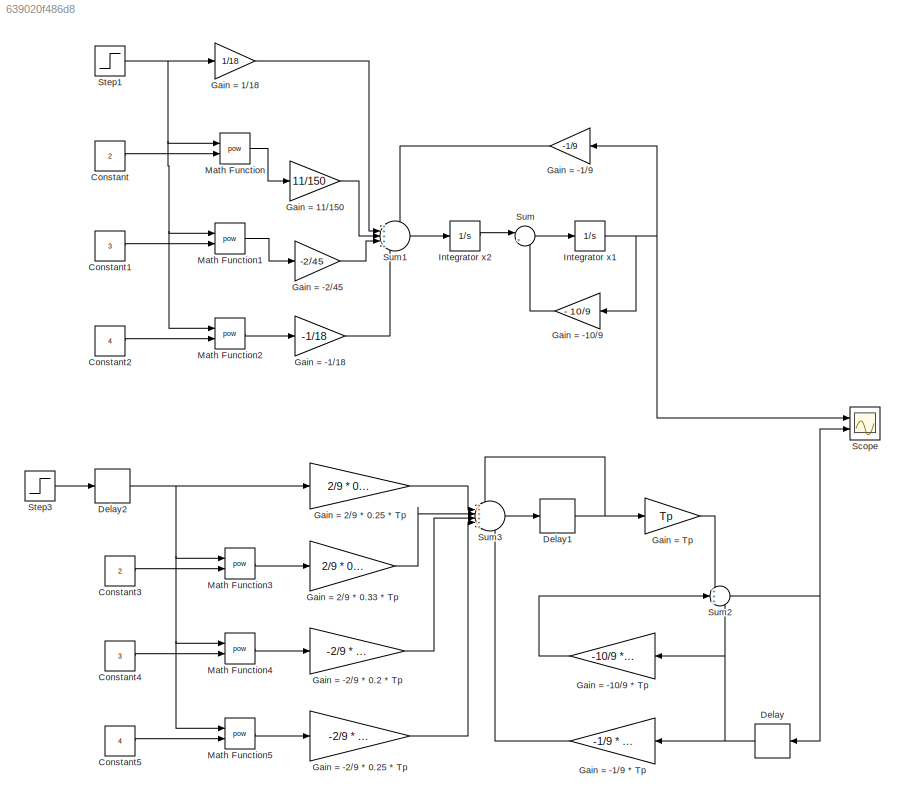
MODEL slx_639020f486d8
KIND model
CONFIG AbsTol = auto
CONFIG EnableMultiTasking = off
CONFIG FixedStep = auto
CONFIG MaxStep = auto
CONFIG MinStep = auto
CONFIG RelTol = 1e-3
CONFIG SampleTimeConstraint = Unconstrained
CONFIG Solver = VariableStepAuto
CONFIG SolverName = VariableStepAuto
CONFIG StartTime = 0.0
CONFIG StopTime = 100
BLOCK [Constant] Constant
  Value = 2
BLOCK [Constant] Constant1
  Value = 3
BLOCK [Constant] Constant2
  Value = 4
BLOCK [Constant] Constant3
  Value = 2
BLOCK [Constant] Constant4
  Value = 3
BLOCK [Constant] Constant5
  Value = 4
BLOCK [Delay] Delay
  DelayLength = 1
  InitialCondition = 0
  InputPortMap = u0
  Ports = [1, 1]
  SampleTime = Tp
BLOCK [Delay] Delay1
  DelayLength = 1
  InitialCondition = 0
  InputPortMap = u0
  Ports = [1, 1]
  SampleTime = Tp
BLOCK [Delay] Delay2
  DelayLength = 1
  InitialCondition = 0
  InputPortMap = u0
  Ports = [1, 1]
  SampleTime = Tp
BLOCK [Gain] Gain = -1//18
  Gain = -1/18
  OutDataTypeStr = Inherit: Inherit via internal rule
  ParamDataTypeStr = Inherit: Inherit via internal rule
  SaturateOnIntegerOverflow = off
BLOCK [Gain] Gain = -1//9
  Gain = -1/9
  OutDataTypeStr = Inherit: Inherit via internal rule
  ParamDataTypeStr = Inherit: Inherit via internal rule
  SaturateOnIntegerOverflow = off
BLOCK [Gain] Gain = -1//9 * Tp
  Gain = -1/9 * Tp
  OutDataTypeStr = Inherit: Inherit via internal rule
  ParamDataTypeStr = Inherit: Inherit via internal rule
  SaturateOnIntegerOverflow = off
BLOCK [Gain] Gain = -10//9
  Gain = - 10/9
  OutDataTypeStr = Inherit: Inherit via internal rule
  ParamDataTypeStr = Inherit: Inherit via internal rule
  SaturateOnIntegerOverflow = off
BLOCK [Gain] Gain = -10//9 * Tp
  Gain = -10/9 * Tp
  OutDataTypeStr = Inherit: Inherit via internal rule
  ParamDataTypeStr = Inherit: Inherit via internal rule
  SaturateOnIntegerOverflow = off
BLOCK [Gain] Gain = -2//45
  Gain = -2/45
  OutDataTypeStr = Inherit: Inherit via internal rule
  ParamDataTypeStr = Inherit: Inherit via internal rule
  SaturateOnIntegerOverflow = off
BLOCK [Gain] Gain = -2//9 * 0.2 * Tp
  Gain = -2/9 * 0.2 * Tp
  OutDataTypeStr = Inherit: Inherit via internal rule
  ParamDataTypeStr = Inherit: Inherit via internal rule
  SaturateOnIntegerOverflow = off
BLOCK [Gain] Gain = -2//9 * 0.25 * Tp
  Gain = -2/9 * 0.25 * Tp
  OutDataTypeStr = Inherit: Inherit via internal rule
  ParamDataTypeStr = Inherit: Inherit via internal rule
  SaturateOnIntegerOverflow = off
BLOCK [Gain] Gain = 1//18
  Gain = 1/18
  OutDataTypeStr = Inherit: Inherit via internal rule
  ParamDataTypeStr = Inherit: Inherit via internal rule
  SaturateOnIntegerOverflow = off
BLOCK [Gain] Gain = 11//150
  Gain = 11/150
  OutDataTypeStr = Inherit: Inherit via internal rule
  ParamDataTypeStr = Inherit: Inherit via internal rule
  SaturateOnIntegerOverflow = off
BLOCK [Gain] Gain = 2//9 * 0.25 * Tp
  Gain = 2/9 * 0.25 * Tp
  OutDataTypeStr = Inherit: Inherit via internal rule
  ParamDataTypeStr = Inherit: Inherit via internal rule
  SaturateOnIntegerOverflow = off
BLOCK [Gain] Gain = 2//9 * 0.33 * Tp
  Gain = 2/9 * 0.33 * Tp
  OutDataTypeStr = Inherit: Inherit via internal rule
  ParamDataTypeStr = Inherit: Inherit via internal rule
  SaturateOnIntegerOverflow = off
BLOCK [Gain] Gain = Tp
  Gain = Tp
  OutDataTypeStr = Inherit: Inherit via internal rule
  ParamDataTypeStr = Inherit: Inherit via internal rule
  SaturateOnIntegerOverflow = off
BLOCK [Integrator] Integrator x1
  Ports = [1, 1]
BLOCK [Integrator] Integrator x2
  Ports = [1, 1]
BLOCK [Math] Math Function
  Operator = pow
  Ports = [2, 1]
BLOCK [Math] Math Function1
  Operator = pow
  Ports = [2, 1]
BLOCK [Math] Math Function2
  Operator = pow
  Ports = [2, 1]
BLOCK [Math] Math Function3
  Operator = pow
  Ports = [2, 1]
BLOCK [Math] Math Function4
  Operator = pow
  Ports = [2, 1]
BLOCK [Math] Math Function5
  Operator = pow
  Ports = [2, 1]
BLOCK [Scope] Scope
  NumInputPorts = 2
  Ports = [2]
  ScopeSpecificationString = Simulink.scopes.TimeScopeBlockCfg('CurrentConfiguration', extmgr.ConfigurationSet(extmgr.Configuration('Core','General UI',true,'FigureColor',[0.831372549019608 0.815686274509804 0.784313725490196]),extmgr.Configuration('Core','Source UI',true),extmgr.Configuration('Sources','WiredSimulink',true),extmgr.Configuration('Visuals','Time Domain',true,'SerializedDisplays',{struct('MinYLimReal','-1032939...<+1797ch>
BLOCK [Step] Step1
  SampleTime = 0
BLOCK [Step] Step3
  SampleTime = Tp
BLOCK [Sum] Sum
  IconShape = round
  InputSameDT = off
  Inputs = |++
  OutDataTypeStr = Inherit: Inherit via internal rule
  Ports = [2, 1]
  SaturateOnIntegerOverflow = off
BLOCK [Sum] Sum1
  IconShape = round
  InputSameDT = off
  Inputs = +++++
  OutDataTypeStr = Inherit: Inherit via internal rule
  Ports = [5, 1]
  SaturateOnIntegerOverflow = off
BLOCK [Sum] Sum2
  IconShape = round
  InputSameDT = off
  Inputs = +++
  OutDataTypeStr = Inherit: Inherit via internal rule
  Ports = [3, 1]
  SaturateOnIntegerOverflow = off
BLOCK [Sum] Sum3
  IconShape = round
  InputSameDT = off
  Inputs = ++++++
  OutDataTypeStr = Inherit: Inherit via internal rule
  Ports = [6, 1]
  SaturateOnIntegerOverflow = off
LINE Constant1:1 -> Math Function1:2
LINE Constant2:1 -> Math Function2:2
LINE Constant3:1 -> Math Function3:2
LINE Constant4:1 -> Math Function4:2
LINE Constant5:1 -> Math Function5:2
LINE Constant:1 -> Math Function:2
NET Delay1:1 -> Gain = Tp:1, Sum3:1
NET Delay2:1 -> Gain = 2//9 * 0.25 * Tp:1, Math Function3:1, Math Function4:1, Math Function5:1
NET Delay:1 -> Gain = -1//9 * Tp:1, Gain = -10//9 * Tp:1, Sum2:3
LINE Gain = -1//18:1 -> Sum1:5
LINE Gain = -1//9 * Tp:1 -> Sum3:6
LINE Gain = -1//9:1 -> Sum1:1
LINE Gain = -10//9 * Tp:1 -> Sum2:2
LINE Gain = -10//9:1 -> Sum:2
LINE Gain = -2//45:1 -> Sum1:4
LINE Gain = -2//9 * 0.2 * Tp:1 -> Sum3:4
LINE Gain = -2//9 * 0.25 * Tp:1 -> Sum3:5
LINE Gain = 1//18:1 -> Sum1:2
LINE Gain = 11//150:1 -> Sum1:3
LINE Gain = 2//9 * 0.25 * Tp:1 -> Sum3:2
LINE Gain = 2//9 * 0.33 * Tp:1 -> Sum3:3
LINE Gain = Tp:1 -> Sum2:1
NET Integrator x1:1 -> Gain = -1//9:1, Gain = -10//9:1, Scope:1
LINE Integrator x2:1 -> Sum:1
LINE Math Function1:1 -> Gain = -2//45:1
LINE Math Function2:1 -> Gain = -1//18:1
LINE Math Function3:1 -> Gain = 2//9 * 0.33 * Tp:1
LINE Math Function4:1 -> Gain = -2//9 * 0.2 * Tp:1
LINE Math Function5:1 -> Gain = -2//9 * 0.25 * Tp:1
LINE Math Function:1 -> Gain = 11//150:1
NET Step1:1 -> Gain = 1//18:1, Math Function1:1, Math Function2:1, Math Function:1
LINE Step3:1 -> Delay2:1
LINE Sum1:1 -> Integrator x2:1
NET Sum2:1 -> Delay:1, Scope:2
LINE Sum3:1 -> Delay1:1
LINE Sum:1 -> Integrator x1:1
note: NET lines group one-source signal fan-out (src -> all destinations, sorted); 1:1 wires keep LINE
